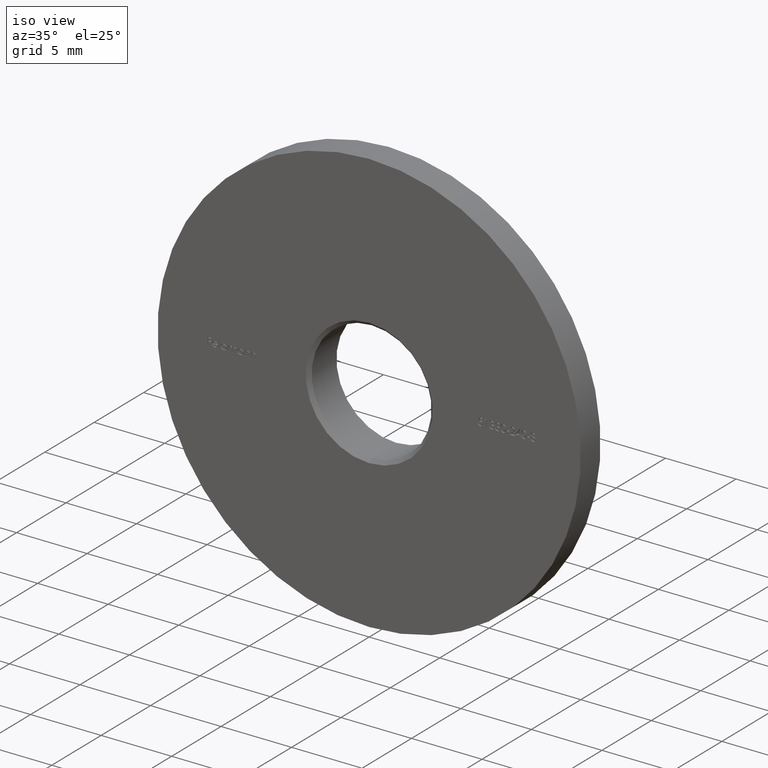
[diagram: clean part render]
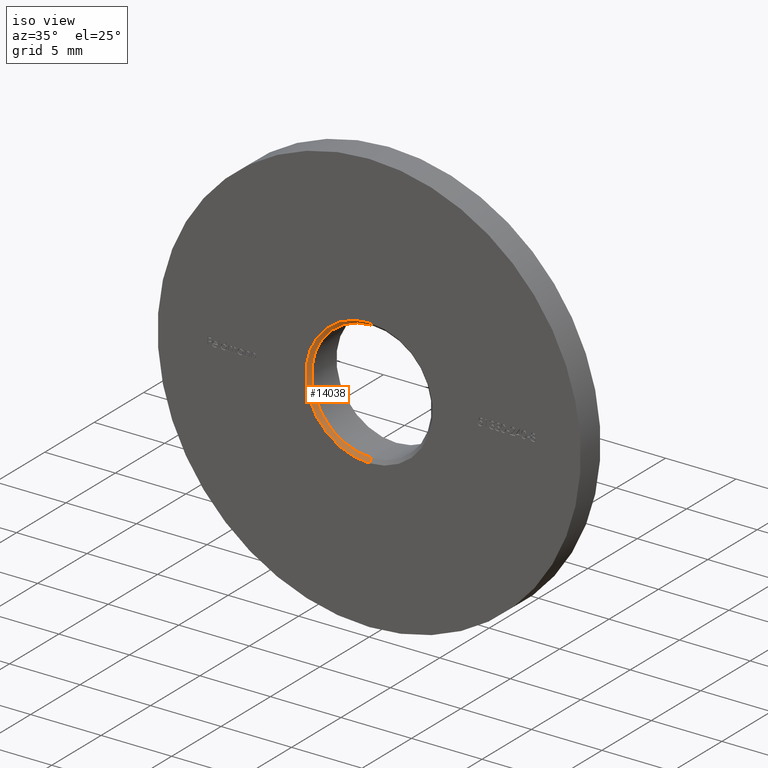
[diagram: same view with one face highlighted and labeled with its STEP entity id]
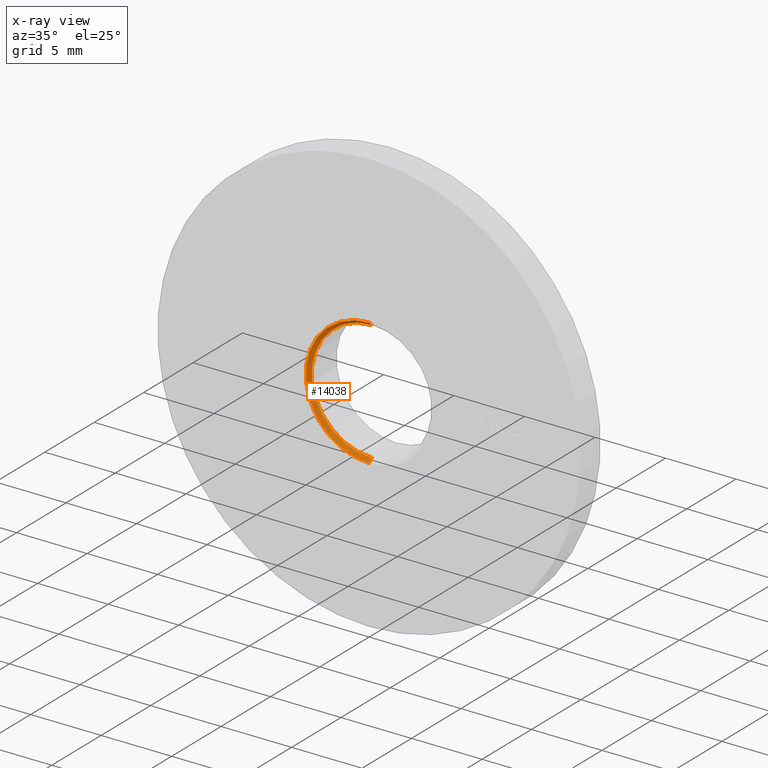
[diagram: x-ray of the same camera — body ghosted, the highlighted face saturated]
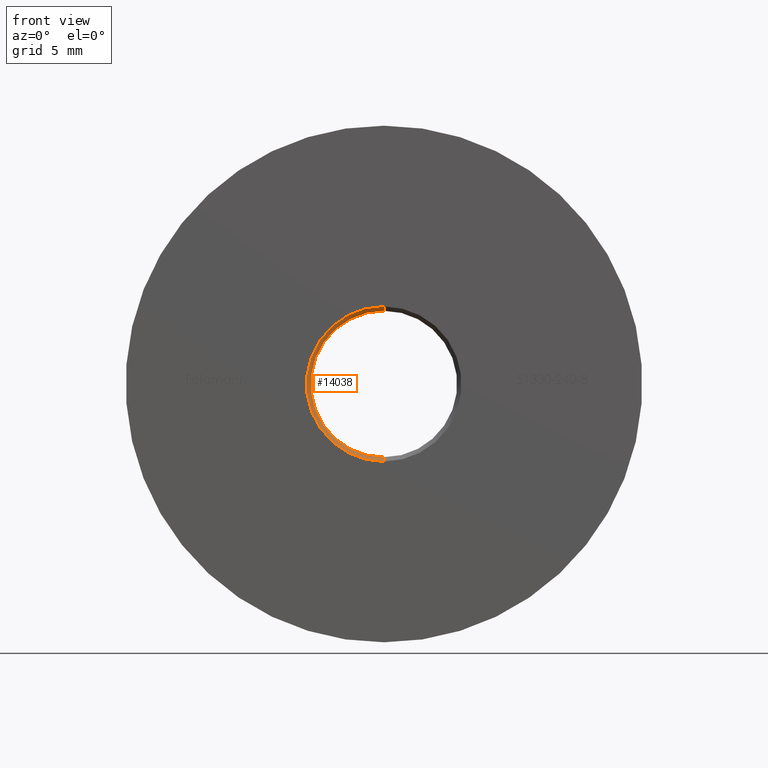
[diagram: same view with one face highlighted and labeled with its STEP entity id]
A machine part, iso view. The second image highlights one B-rep face of the part: STEP entity #14038.
The next image is the same camera in x-ray: the body ghosted, the highlighted face saturated — about 0% of this face is hidden behind the body in this view.
A second angle (front view) of the same face is appended — the face is thin or edge-on in the first view.
In plain terms, the highlighted conical surface has half-angle 45 deg.
Its self-contained STEP definition (entity closure, byte-faithful):
#237 = ORIENTED_EDGE ( 'NONE', *, *, #6486, .F. ) ;
#435 = ORIENTED_EDGE ( 'NONE', *, *, #521, .F. ) ;
#521 = EDGE_CURVE ( 'NONE', #1969, #4151, #4873, .T. ) ;
#823 = AXIS2_PLACEMENT_3D ( 'NONE', #8020, #7967, #2410 ) ;
#1657 = FACE_OUTER_BOUND ( 'NONE', #14361, .T. ) ;
#1834 = VERTEX_POINT ( 'NONE', #8493 ) ;
#1891 = CARTESIAN_POINT ( 'NONE',  ( 0.000000000000000000, 0.000000000000000000, -4.499999999999990230 ) ) ;
#1969 = VERTEX_POINT ( 'NONE', #14505 ) ;
#2410 = DIRECTION ( 'NONE',  ( 0.000000000000000000, 0.000000000000000000, -1.000000000000000000 ) ) ;
#2701 = ORIENTED_EDGE ( 'NONE', *, *, #12751, .T. ) ;
#3371 = CARTESIAN_POINT ( 'NONE',  ( 5.510910596163077723E-16, 0.000000000000000000, 4.499999999999990230 ) ) ;
#3819 = CIRCLE ( 'NONE', #14933, 4.499999999999990230 ) ;
#3913 = LINE ( 'NONE', #1891, #9690 ) ;
#4151 = VERTEX_POINT ( 'NONE', #10380 ) ;
#4173 = CARTESIAN_POINT ( 'NONE',  ( 0.000000000000000000, 0.000000000000000000, 0.000000000000000000 ) ) ;
#4178 = DIRECTION ( 'NONE',  ( 0.000000000000000000, -0.7071067811865512365, -0.7071067811865439090 ) ) ;
#4379 = DIRECTION ( 'NONE',  ( 0.000000000000000000, 0.000000000000000000, 1.000000000000000000 ) ) ;
#4873 = CIRCLE ( 'NONE', #8430, 4.250000000000000000 ) ;
#5627 = EDGE_CURVE ( 'NONE', #4151, #1834, #3913, .T. ) ;
#5847 = DIRECTION ( 'NONE',  ( 0.000000000000000000, 0.000000000000000000, 1.000000000000000000 ) ) ;
#6187 = VECTOR ( 'NONE', #9142, 1000.000000000000000 ) ;
#6486 = EDGE_CURVE ( 'NONE', #1834, #14624, #3819, .T. ) ;
#6543 = CONICAL_SURFACE ( 'NONE', #823, 4.499999999999990230, 0.7853981633974431720 ) ;
#7157 = DIRECTION ( 'NONE',  ( -0.000000000000000000, -1.000000000000000000, -0.000000000000000000 ) ) ;
#7758 = DIRECTION ( 'NONE',  ( 0.000000000000000000, 1.000000000000000000, 0.000000000000000000 ) ) ;
#7967 = DIRECTION ( 'NONE',  ( -0.000000000000000000, -1.000000000000000000, -0.000000000000000000 ) ) ;
#8020 = CARTESIAN_POINT ( 'NONE',  ( 0.000000000000000000, 0.000000000000000000, 0.000000000000000000 ) ) ;
#8430 = AXIS2_PLACEMENT_3D ( 'NONE', #14073, #7157, #5847 ) ;
#8493 = CARTESIAN_POINT ( 'NONE',  ( 0.000000000000000000, 0.000000000000000000, -4.499999999999990230 ) ) ;
#9142 = DIRECTION ( 'NONE',  ( 8.659560562354889717E-17, -0.7071067811865512365, 0.7071067811865439090 ) ) ;
#9690 = VECTOR ( 'NONE', #4178, 1000.000000000000000 ) ;
#9855 = ORIENTED_EDGE ( 'NONE', *, *, #5627, .F. ) ;
#9996 = LINE ( 'NONE', #3371, #6187 ) ;
#10380 = CARTESIAN_POINT ( 'NONE',  ( 0.000000000000000000, 0.2499999999999924227, -4.250000000000000000 ) ) ;
#12751 = EDGE_CURVE ( 'NONE', #1969, #14624, #9996, .T. ) ;
#14038 = ADVANCED_FACE ( 'NONE', ( #1657 ), #6543, .F. ) ;
#14073 = CARTESIAN_POINT ( 'NONE',  ( 0.000000000000000000, 0.2499999999999924227, 0.000000000000000000 ) ) ;
#14361 = EDGE_LOOP ( 'NONE', ( #435, #2701, #237, #9855 ) ) ;
#14490 = CARTESIAN_POINT ( 'NONE',  ( 5.510910596163077723E-16, 0.000000000000000000, 4.499999999999990230 ) ) ;
#14505 = CARTESIAN_POINT ( 'NONE',  ( 5.204748896376250699E-16, 0.2499999999999924227, 4.250000000000000000 ) ) ;
#14624 = VERTEX_POINT ( 'NONE', #14490 ) ;
#14933 = AXIS2_PLACEMENT_3D ( 'NONE', #4173, #7758, #4379 ) ;